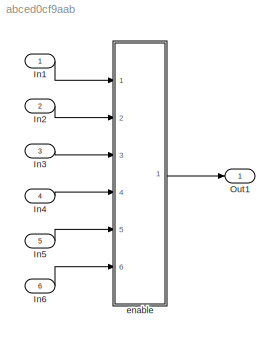
MODEL slx_abced0cf9aab
KIND model
CONFIG AbsTol = auto
CONFIG EnableMultiTasking = off
CONFIG FixedStep = auto
CONFIG MaxStep = auto
CONFIG MinStep = auto
CONFIG RelTol = 1e-3
CONFIG SampleTimeConstraint = Unconstrained
CONFIG Solver = FixedStepDiscrete
CONFIG SolverName = FixedStepDiscrete
CONFIG StartTime = 0.0
CONFIG StopTime = 10.0
BLOCK [Inport] In1
  IconDisplay = Port number
BLOCK [Inport] In2
  IconDisplay = Port number
  Port = 2
BLOCK [Inport] In3
  IconDisplay = Port number
  Port = 3
BLOCK [Inport] In4
  IconDisplay = Port number
  Port = 4
BLOCK [Inport] In5
  IconDisplay = Port number
  Port = 5
BLOCK [Inport] In6
  IconDisplay = Port number
  Port = 6
BLOCK [Outport] Out1
  IconDisplay = Port number
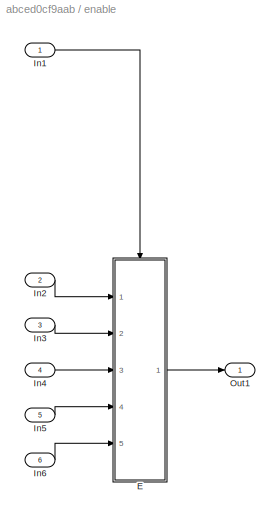
BLOCK [SubSystem] enable
  AncestorBlock = Block_TestLib/enable
  Ports = [6, 1]
  RequestExecContextInheritance = off
  Variant = off
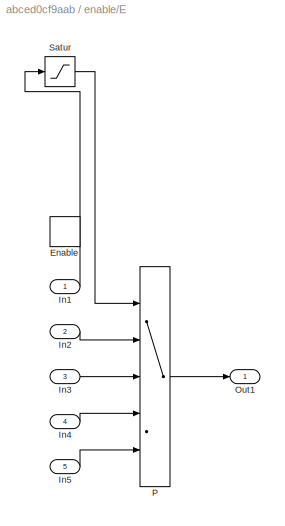
BLOCK [SubSystem] enable/E
  Ports = [5, 1, 1]
  RequestExecContextInheritance = off
  TreatAsAtomicUnit = on
  Variant = off
BLOCK [EnablePort] enable/E/Enable
  Ports = []
BLOCK [Inport] enable/E/In1
  IconDisplay = Port number
  OutMax = 4
  OutMin = 1
BLOCK [Inport] enable/E/In2
  IconDisplay = Port number
  Port = 2
  PortDimensions = [2,3]
BLOCK [Inport] enable/E/In3
  IconDisplay = Port number
  Port = 3
  PortDimensions = [2,3]
BLOCK [Inport] enable/E/In4
  IconDisplay = Port number
  Port = 4
  PortDimensions = [2,3]
BLOCK [Inport] enable/E/In5
  IconDisplay = Port number
  Port = 5
  PortDimensions = [2,3]
BLOCK [Outport] enable/E/Out1
  IconDisplay = Port number
BLOCK [MultiPortSwitch] enable/E/P
  InputSameDT = off
  Inputs = 4
  Ports = [5, 1]
  SaturateOnIntegerOverflow = off
BLOCK [Saturate] enable/E/Satur
  InputPortMap = u0
  LowerLimit = 1
  Ports = [1, 1]
  UpperLimit = 4
BLOCK [Inport] enable/In1
  IconDisplay = Port number
  OutDataTypeStr = boolean
BLOCK [Inport] enable/In2
  IconDisplay = Port number
  Port = 2
BLOCK [Inport] enable/In3
  IconDisplay = Port number
  Port = 3
BLOCK [Inport] enable/In4
  IconDisplay = Port number
  Port = 4
BLOCK [Inport] enable/In5
  IconDisplay = Port number
  Port = 5
BLOCK [Inport] enable/In6
  IconDisplay = Port number
  Port = 6
BLOCK [Outport] enable/Out1
  IconDisplay = Port number
LINE In1:1 -> enable:1
LINE In2:1 -> enable:2
LINE In3:1 -> enable:3
LINE In4:1 -> enable:4
LINE In5:1 -> enable:5
LINE In6:1 -> enable:6
LINE enable:1 -> Out1:1
